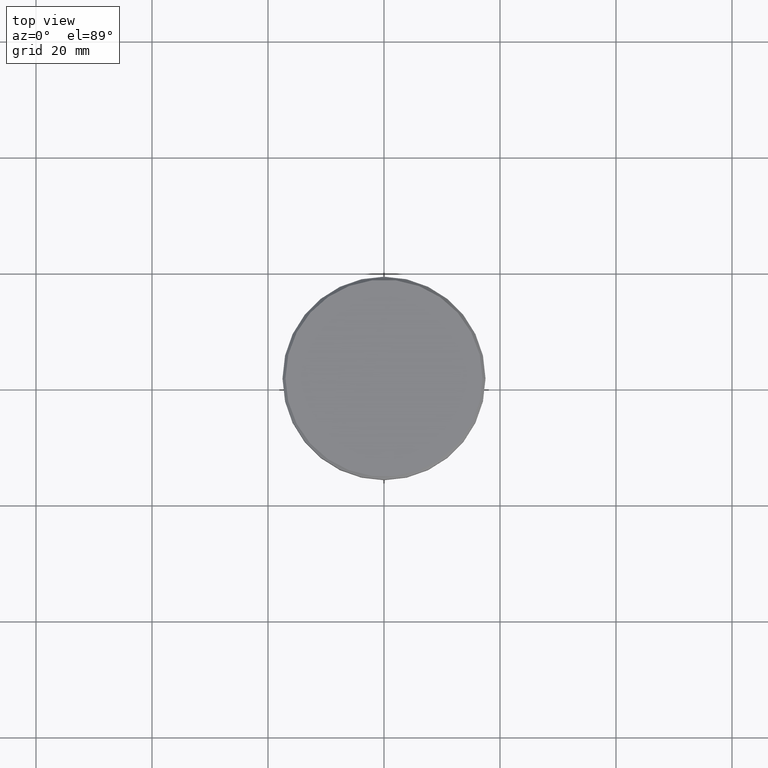
[diagram: clean part render]
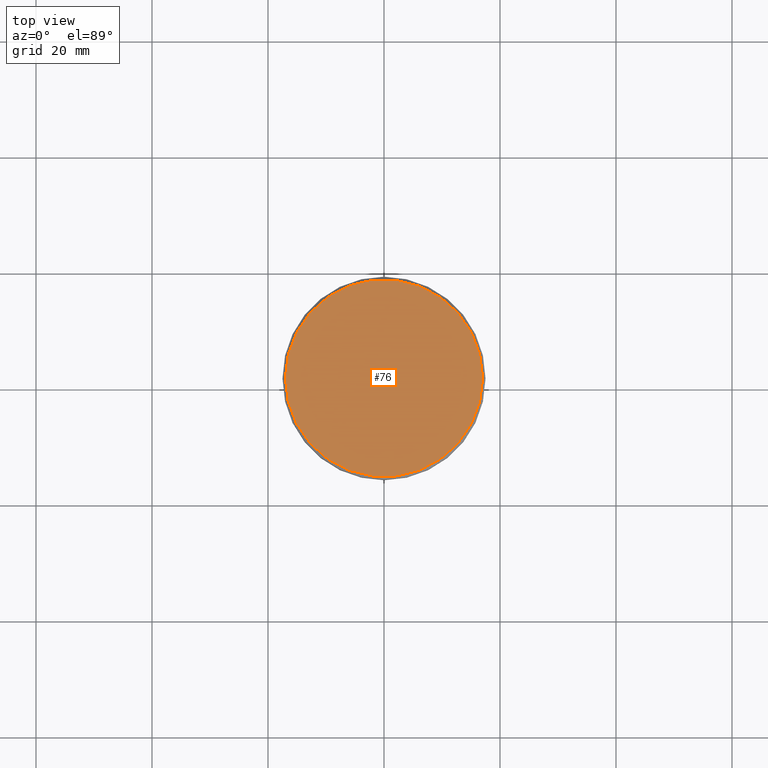
[diagram: same view with one face highlighted and labeled with its STEP entity id]
A machine part, top view. The second image highlights one B-rep face of the part: STEP entity #76.
In plain terms, the highlighted planar face has unit normal (0, -0, 1).
Its self-contained STEP definition (entity closure, byte-faithful):
#76 = ADVANCED_FACE ( 'NONE', ( #373 ), #293, .T. ) ;
#85 = AXIS2_PLACEMENT_3D ( 'NONE', #610, #976, #989 ) ;
#135 = ORIENTED_EDGE ( 'NONE', *, *, #599, .T. ) ;
#188 = DIRECTION ( 'NONE',  ( 0.000000000000000000, -0.000000000000000000, 1.000000000000000000 ) ) ;
#203 = CARTESIAN_POINT ( 'NONE',  ( -17.00000000000000000, 0.000000000000000000, 0.000000000000000000 ) ) ;
#293 = PLANE ( 'NONE',  #1063 ) ;
#344 = CARTESIAN_POINT ( 'NONE',  ( 17.00000000000000000, 2.112515728529184067E-15, 0.000000000000000000 ) ) ;
#356 = VERTEX_POINT ( 'NONE', #203 ) ;
#373 = FACE_OUTER_BOUND ( 'NONE', #979, .T. ) ;
#425 = CIRCLE ( 'NONE', #85, 17.00000000000000000 ) ;
#482 = EDGE_CURVE ( 'NONE', #880, #356, #425, .T. ) ;
#539 = AXIS2_PLACEMENT_3D ( 'NONE', #743, #757, #721 ) ;
#599 = EDGE_CURVE ( 'NONE', #356, #880, #615, .T. ) ;
#610 = CARTESIAN_POINT ( 'NONE',  ( 0.000000000000000000, 0.000000000000000000, 0.000000000000000000 ) ) ;
#615 = CIRCLE ( 'NONE', #539, 17.00000000000000000 ) ;
#721 = DIRECTION ( 'NONE',  ( 1.000000000000000000, 0.000000000000000000, 0.000000000000000000 ) ) ;
#743 = CARTESIAN_POINT ( 'NONE',  ( 0.000000000000000000, 0.000000000000000000, 0.000000000000000000 ) ) ;
#757 = DIRECTION ( 'NONE',  ( -0.000000000000000000, -0.000000000000000000, 1.000000000000000000 ) ) ;
#880 = VERTEX_POINT ( 'NONE', #344 ) ;
#976 = DIRECTION ( 'NONE',  ( -0.000000000000000000, -0.000000000000000000, 1.000000000000000000 ) ) ;
#979 = EDGE_LOOP ( 'NONE', ( #135, #1103 ) ) ;
#989 = DIRECTION ( 'NONE',  ( 1.000000000000000000, 0.000000000000000000, 0.000000000000000000 ) ) ;
#1013 = CARTESIAN_POINT ( 'NONE',  ( 0.000000000000000000, 0.000000000000000000, 0.000000000000000000 ) ) ;
#1063 = AXIS2_PLACEMENT_3D ( 'NONE', #1013, #188, #1111 ) ;
#1103 = ORIENTED_EDGE ( 'NONE', *, *, #482, .T. ) ;
#1111 = DIRECTION ( 'NONE',  ( 1.000000000000000000, 0.000000000000000000, 0.000000000000000000 ) ) ;